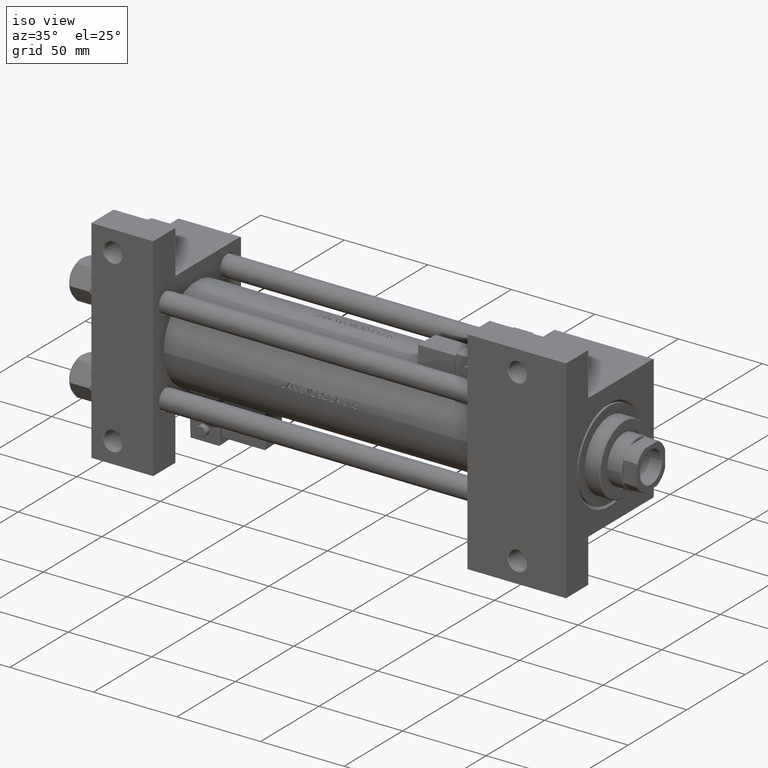
[diagram: clean part render]
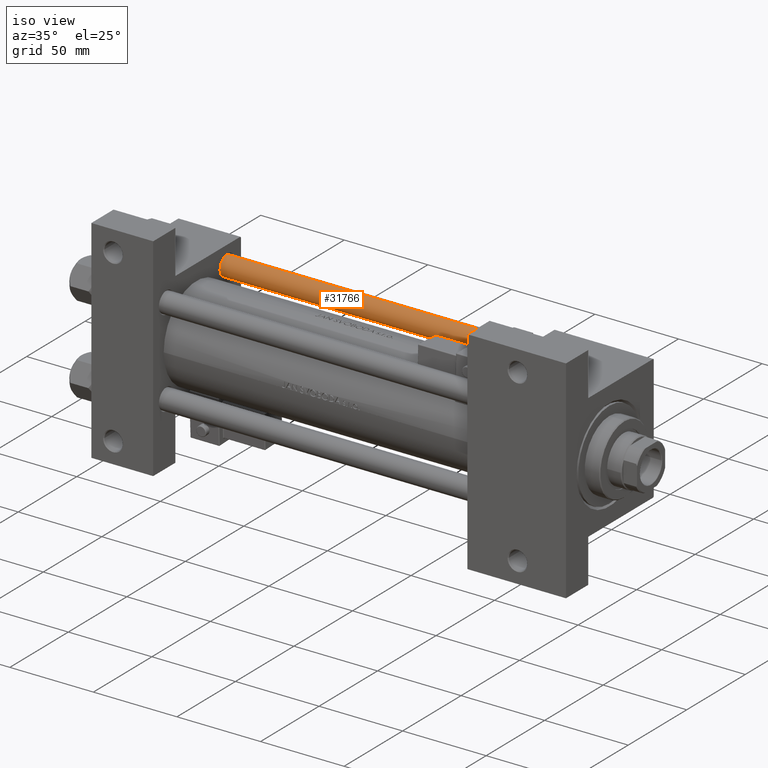
[diagram: same view with one face highlighted and labeled with its STEP entity id]
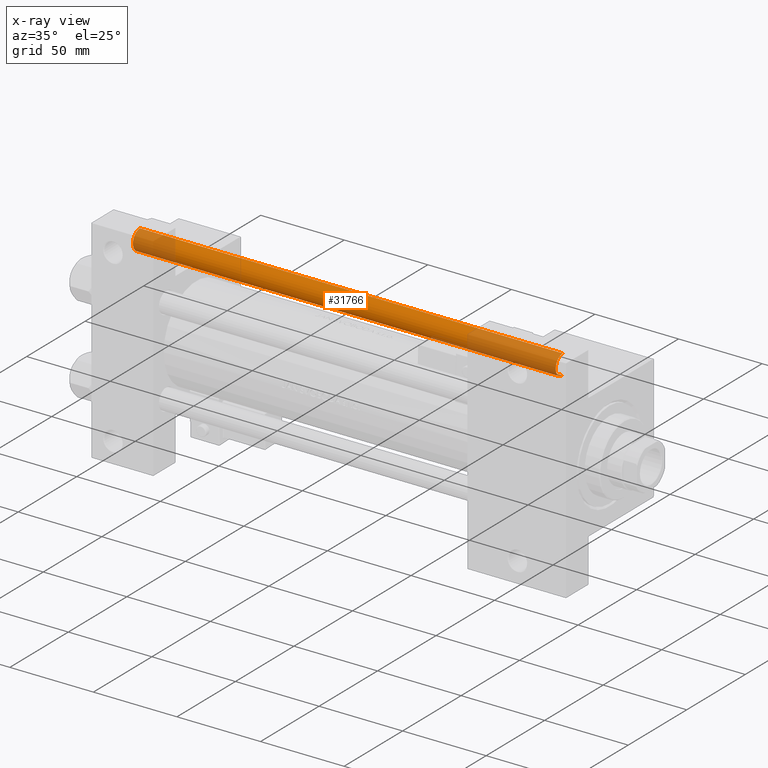
[diagram: x-ray of the same camera — body ghosted, the highlighted face saturated]
A machine part, iso view. The second image highlights one B-rep face of the part: STEP entity #31766.
The next image is the same camera in x-ray: the body ghosted, the highlighted face saturated — about 31% of this face is hidden behind the body in this view.
In plain terms, the highlighted cylindrical surface (edge-blend (fillet) strip) has radius 6 mm, axis along (-1, -0, -0).
Its self-contained STEP definition (entity closure, byte-faithful):
#122 = DIRECTION ( 'NONE',  ( -0.000000000000000000, -0.000000000000000000, -1.000000000000000000 ) ) ;
#144 = CYLINDRICAL_SURFACE ( 'NONE', #13788, 6.000000000000000888 ) ;
#4739 = DIRECTION ( 'NONE',  ( 0.000000000000000000, 0.000000000000000000, -1.000000000000000000 ) ) ;
#5498 = VECTOR ( 'NONE', #122, 1000.000000000000000 ) ;
#6009 = CIRCLE ( 'NONE', #11776, 6.000000000000000888 ) ;
#6595 = EDGE_CURVE ( 'NONE', #21375, #41401, #6009, .T. ) ;
#8970 = CARTESIAN_POINT ( 'NONE',  ( -6.000000000000000888, 0.000000000000000000, 254.0000000000000000 ) ) ;
#11776 = AXIS2_PLACEMENT_3D ( 'NONE', #28848, #29876, #33482 ) ;
#11815 = DIRECTION ( 'NONE',  ( -0.000000000000000000, -0.000000000000000000, -1.000000000000000000 ) ) ;
#13282 = CARTESIAN_POINT ( 'NONE',  ( 0.000000000000000000, 0.000000000000000000, 253.5000000000000568 ) ) ;
#13511 = CARTESIAN_POINT ( 'NONE',  ( 6.000000000000000888, 7.347880794884120722E-16, 254.0000000000000000 ) ) ;
#13788 = AXIS2_PLACEMENT_3D ( 'NONE', #14787, #11815, #26477 ) ;
#14787 = CARTESIAN_POINT ( 'NONE',  ( 0.000000000000000000, 0.000000000000000000, 254.0000000000000000 ) ) ;
#17002 = CIRCLE ( 'NONE', #22777, 6.000000000000000888 ) ;
#18031 = CARTESIAN_POINT ( 'NONE',  ( 6.000000000000000888, 7.347880794884120722E-16, 0.5000000000000004441 ) ) ;
#20346 = LINE ( 'NONE', #8970, #5498 ) ;
#20465 = ORIENTED_EDGE ( 'NONE', *, *, #32629, .T. ) ;
#21203 = ORIENTED_EDGE ( 'NONE', *, *, #42793, .F. ) ;
#21375 = VERTEX_POINT ( 'NONE', #22706 ) ;
#21802 = LINE ( 'NONE', #13511, #48892 ) ;
#22042 = ORIENTED_EDGE ( 'NONE', *, *, #46527, .T. ) ;
#22706 = CARTESIAN_POINT ( 'NONE',  ( -6.000000000000000888, 0.000000000000000000, 0.5000000000000004441 ) ) ;
#22777 = AXIS2_PLACEMENT_3D ( 'NONE', #13282, #4739, #49032 ) ;
#26239 = EDGE_LOOP ( 'NONE', ( #21203, #22042, #20465, #50817 ) ) ;
#26477 = DIRECTION ( 'NONE',  ( -1.000000000000000000, 0.000000000000000000, 0.000000000000000000 ) ) ;
#28848 = CARTESIAN_POINT ( 'NONE',  ( 0.000000000000000000, 0.000000000000000000, 0.5000000000000004441 ) ) ;
#29876 = DIRECTION ( 'NONE',  ( -0.000000000000000000, -0.000000000000000000, 1.000000000000000000 ) ) ;
#31766 = ADVANCED_FACE ( 'NONE', ( #38378 ), #144, .T. ) ;
#32629 = EDGE_CURVE ( 'NONE', #33125, #21375, #20346, .T. ) ;
#33125 = VERTEX_POINT ( 'NONE', #38301 ) ;
#33482 = DIRECTION ( 'NONE',  ( 1.000000000000000000, 0.000000000000000000, 0.000000000000000000 ) ) ;
#35057 = VERTEX_POINT ( 'NONE', #42371 ) ;
#37355 = DIRECTION ( 'NONE',  ( -0.000000000000000000, -0.000000000000000000, -1.000000000000000000 ) ) ;
#38301 = CARTESIAN_POINT ( 'NONE',  ( -6.000000000000000888, 0.000000000000000000, 253.5000000000000568 ) ) ;
#38378 = FACE_OUTER_BOUND ( 'NONE', #26239, .T. ) ;
#41401 = VERTEX_POINT ( 'NONE', #18031 ) ;
#42371 = CARTESIAN_POINT ( 'NONE',  ( 6.000000000000000888, 7.347880794884120722E-16, 253.5000000000000568 ) ) ;
#42793 = EDGE_CURVE ( 'NONE', #35057, #41401, #21802, .T. ) ;
#46527 = EDGE_CURVE ( 'NONE', #35057, #33125, #17002, .T. ) ;
#48892 = VECTOR ( 'NONE', #37355, 1000.000000000000000 ) ;
#49032 = DIRECTION ( 'NONE',  ( 1.000000000000000000, 0.000000000000000000, 0.000000000000000000 ) ) ;
#50817 = ORIENTED_EDGE ( 'NONE', *, *, #6595, .T. ) ;